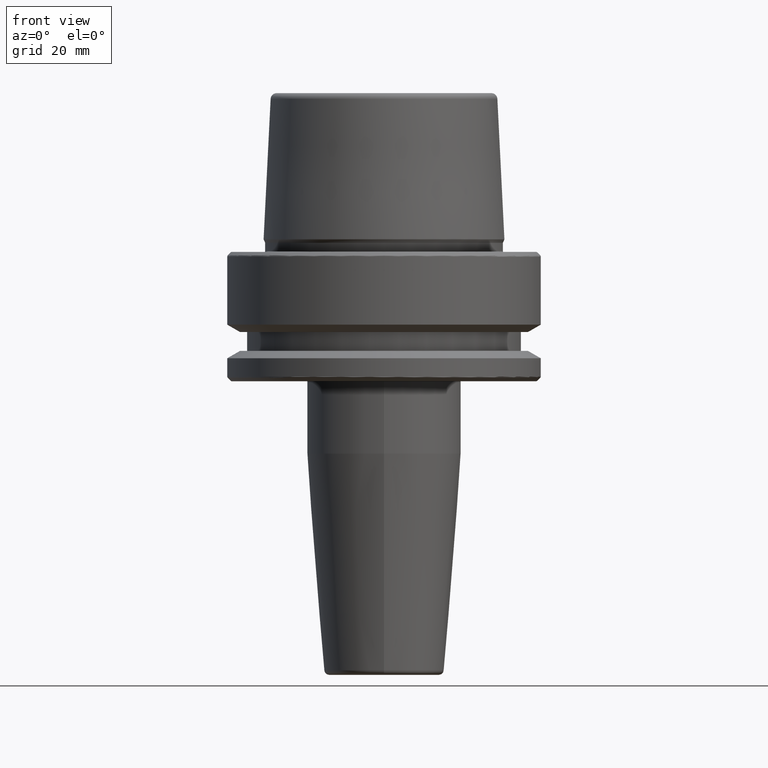
[diagram: clean part render]
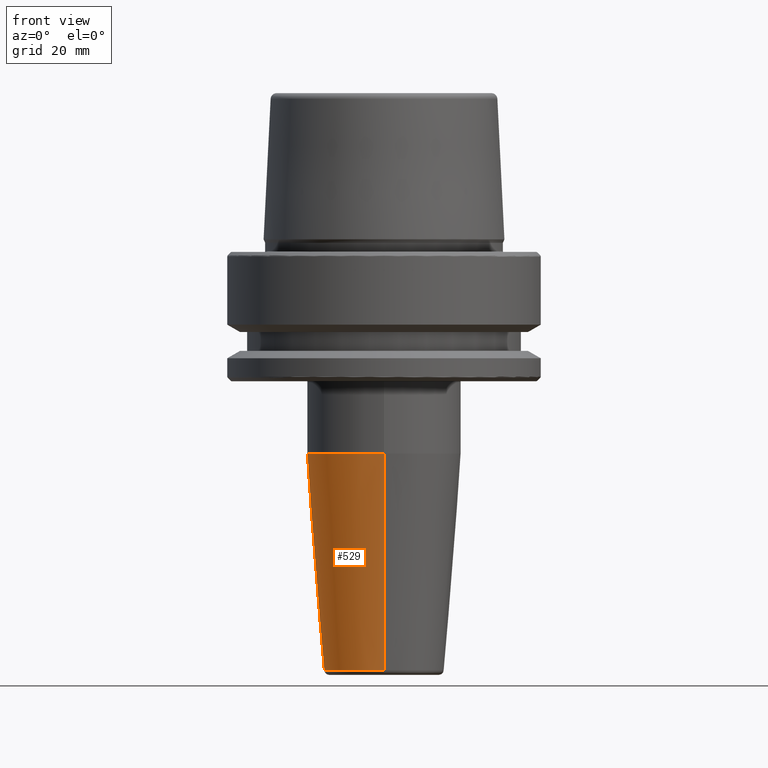
[diagram: same view with one face highlighted and labeled with its STEP entity id]
A machine part, front view. The second image highlights one B-rep face of the part: STEP entity #529.
In plain terms, the highlighted conical surface has half-angle 4.5 deg.
Its self-contained STEP definition (entity closure, byte-faithful):
#4 = ORIENTED_EDGE ( 'NONE', *, *, #1039, .T. ) ;
#8 = EDGE_LOOP ( 'NONE', ( #1142, #1159, #108, #4 ) ) ;
#54 = CARTESIAN_POINT ( 'NONE',  ( 0.0000000000000000000, 6.027593138219801900E-016, -84.07845909572785100 ) ) ;
#108 = ORIENTED_EDGE ( 'NONE', *, *, #916, .T. ) ;
#120 = CARTESIAN_POINT ( 'NONE',  ( 1.898202538678396800E-015, 15.49999999999999300, -40.52828342338443700 ) ) ;
#146 = CARTESIAN_POINT ( 'NONE',  ( 1.478458135476755100E-015, -12.07252684207491600, -84.07845909572785100 ) ) ;
#171 = DIRECTION ( 'NONE',  ( 9.608468044709201400E-018, 0.07845909572783753300, 0.9969173337331286300 ) ) ;
#179 = CIRCLE ( 'NONE', #811, 15.49999999999999300 ) ;
#205 = AXIS2_PLACEMENT_3D ( 'NONE', #54, #794, #817 ) ;
#217 = VERTEX_POINT ( 'NONE', #120 ) ;
#227 = AXIS2_PLACEMENT_3D ( 'NONE', #719, #550, #347 ) ;
#260 = CARTESIAN_POINT ( 'NONE',  ( 0.0000000000000000000, -15.49999999999999300, -40.52828342338443700 ) ) ;
#347 = DIRECTION ( 'NONE',  ( 0.0000000000000000000, -1.000000000000000000, 0.0000000000000000000 ) ) ;
#355 = FACE_OUTER_BOUND ( 'NONE', #8, .T. ) ;
#359 = CARTESIAN_POINT ( 'NONE',  ( 0.0000000000000000000, -15.49999999999999300, -40.52828342338443700 ) ) ;
#529 = ADVANCED_FACE ( 'NONE', ( #355 ), #805, .T. ) ;
#540 = DIRECTION ( 'NONE',  ( 0.0000000000000000000, 1.000000000000000000, 0.0000000000000000000 ) ) ;
#550 = DIRECTION ( 'NONE',  ( 0.0000000000000000000, -1.037836270463859800E-017, 1.000000000000000000 ) ) ;
#568 = EDGE_CURVE ( 'NONE', #1229, #708, #838, .T. ) ;
#582 = LINE ( 'NONE', #1162, #743 ) ;
#708 = VERTEX_POINT ( 'NONE', #1028 ) ;
#716 = VERTEX_POINT ( 'NONE', #260 ) ;
#719 = CARTESIAN_POINT ( 'NONE',  ( 0.0000000000000000000, 1.507797948436721200E-016, -40.52828342338443700 ) ) ;
#731 = DIRECTION ( 'NONE',  ( 0.0000000000000000000, -0.07845909572783756100, 0.9969173337331286300 ) ) ;
#743 = VECTOR ( 'NONE', #171, 999.9999999999998900 ) ;
#794 = DIRECTION ( 'NONE',  ( -0.0000000000000000000, 1.037836270463859800E-017, -1.000000000000000000 ) ) ;
#802 = LINE ( 'NONE', #359, #1056 ) ;
#805 = CONICAL_SURFACE ( 'NONE', #227, 15.49999999999999300, 0.07853981633973741700 ) ;
#811 = AXIS2_PLACEMENT_3D ( 'NONE', #925, #829, #540 ) ;
#817 = DIRECTION ( 'NONE',  ( 0.0000000000000000000, 1.000000000000000000, 0.0000000000000000000 ) ) ;
#829 = DIRECTION ( 'NONE',  ( -0.0000000000000000000, 1.037836270463859800E-017, -1.000000000000000000 ) ) ;
#838 = CIRCLE ( 'NONE', #205, 12.07252684207491600 ) ;
#916 = EDGE_CURVE ( 'NONE', #1229, #716, #802, .T. ) ;
#925 = CARTESIAN_POINT ( 'NONE',  ( 0.0000000000000000000, 1.507797948436721200E-016, -40.52828342338443700 ) ) ;
#949 = EDGE_CURVE ( 'NONE', #708, #217, #582, .T. ) ;
#1028 = CARTESIAN_POINT ( 'NONE',  ( 0.0000000000000000000, 12.07252684207491600, -84.07845909572785100 ) ) ;
#1039 = EDGE_CURVE ( 'NONE', #716, #217, #179, .T. ) ;
#1056 = VECTOR ( 'NONE', #731, 999.9999999999998900 ) ;
#1142 = ORIENTED_EDGE ( 'NONE', *, *, #949, .F. ) ;
#1159 = ORIENTED_EDGE ( 'NONE', *, *, #568, .F. ) ;
#1162 = CARTESIAN_POINT ( 'NONE',  ( 1.898202538678396800E-015, 15.49999999999999300, -40.52828342338443700 ) ) ;
#1229 = VERTEX_POINT ( 'NONE', #146 ) ;